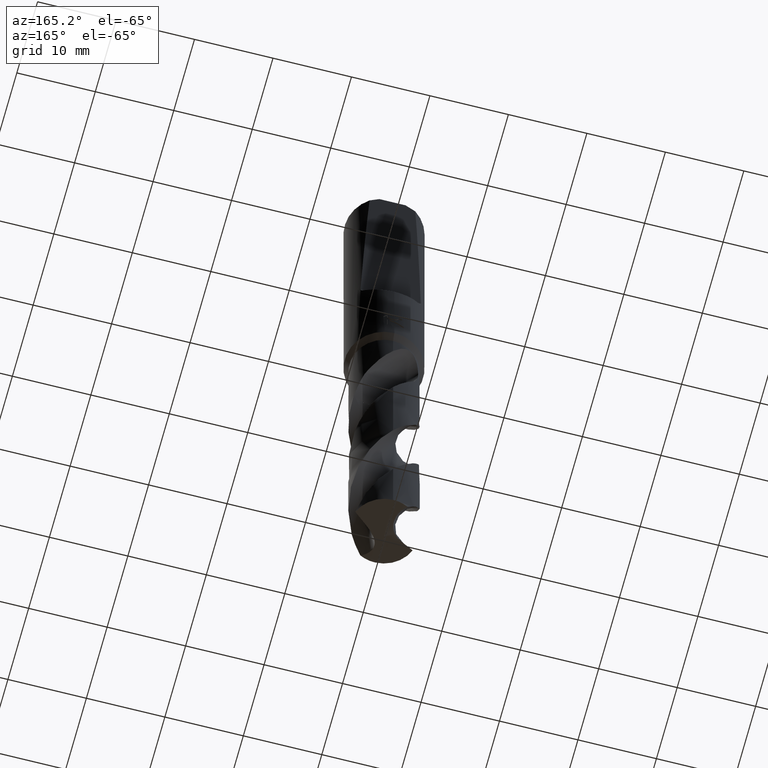
[diagram: clean part render]
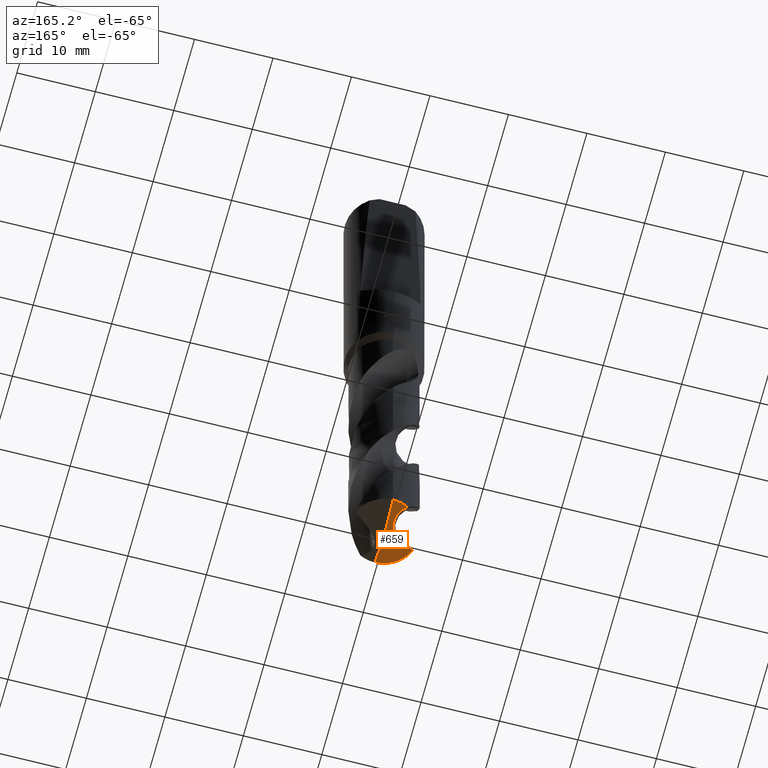
[diagram: same view with one face highlighted and labeled with its STEP entity id]
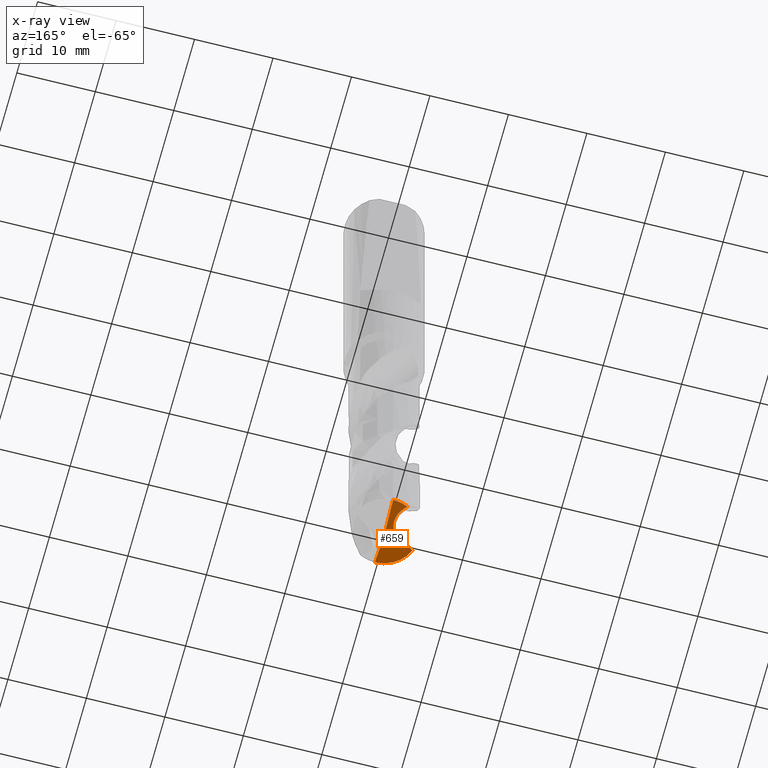
[diagram: x-ray of the same camera — body ghosted, the highlighted face saturated]
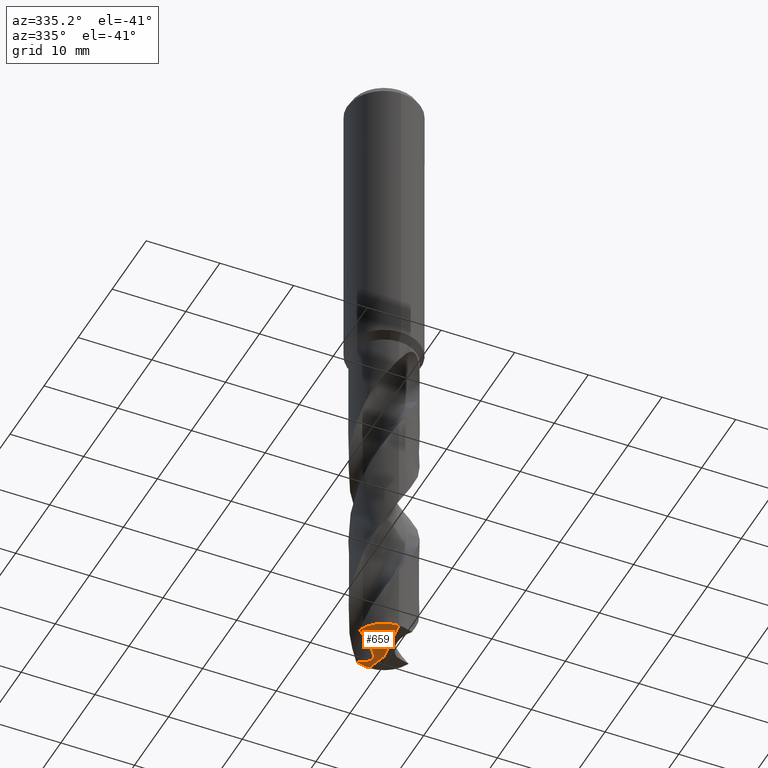
[diagram: same view with one face highlighted and labeled with its STEP entity id]
A machine part, auxiliary view. The second image highlights one B-rep face of the part: STEP entity #659.
The next image is the same camera in x-ray: the body ghosted, the highlighted face saturated — about 0% of this face is hidden behind the body in this view.
A second angle (auxiliary view) of the same face is appended — the face is thin or edge-on in the first view.
In plain terms, the highlighted conical surface has half-angle 70 deg.
Its self-contained STEP definition (entity closure, byte-faithful):
#421=EDGE_CURVE('',#719,#565,#995,.T.);
#451=EDGE_CURVE('',#683,#703,#1028,.T.);
#491=EDGE_CURVE('',#703,#719,#1070,.T.);
#493=EDGE_CURVE('',#725,#693,#1072,.T.);
#521=EDGE_CURVE('',#693,#683,#1101,.T.);
#565=VERTEX_POINT('',#1150);
#601=EDGE_CURVE('',#565,#725,#1189,.T.);
#659=ADVANCED_FACE('',(#1253),#1254,.T.);
#683=VERTEX_POINT('',#1282);
#693=VERTEX_POINT('',#1293);
#703=VERTEX_POINT('',#1303);
#719=VERTEX_POINT('',#1320);
#725=VERTEX_POINT('',#1326);
#995=B_SPLINE_CURVE_WITH_KNOTS('',3,(#4388,#4389,#4390,#4391),.UNSPECIFIED.,.F.,.F.,(4,4),(0.0,3.81427785119124),.UNSPECIFIED.);
#1028=LINE('',#4778,#4779);
#1070=CIRCLE('',#4896,4.4);
#1072=CIRCLE('',#4899,4.4);
#1101=LINE('',#4969,#4970);
#1150=CARTESIAN_POINT('',(-2.67709469848093,-0.712319486324731,-87.9917147423264));
#1189=B_SPLINE_CURVE_WITH_KNOTS('',3,(#5320,#5321,#5322,#5323,#5324,#5325,#5326,#5327,#5328,#5329,#5330,#5331,#5332,#5333,#5334,#5335,#5336,#5337,#5338,#5339),.UNSPECIFIED.,.F.,.F.,(4,2,2,2,2,2,2,2,2,4),(0.0,1.83125859256864,3.07777585283208,4.26415405684286,5.59452050750894,7.03864488996546,8.6705030000871,10.4947934989979,11.5945860376614,12.6939633731758),.UNSPECIFIED.);
#1253=FACE_OUTER_BOUND('',#6067,.T.);
#1254=CONICAL_SURFACE('',#6068,2.2,1.22173047639603);
#1282=CARTESIAN_POINT('',(0.0,0.0,-89.0));
#1293=CARTESIAN_POINT('',(-5.38827073934984E-016,4.4,-87.3985309692287));
#1303=CARTESIAN_POINT('',(5.38826795681846E-016,-4.4,-87.3985309692287));
#1320=CARTESIAN_POINT('',(-4.08589994672556,-1.63261190285631,-87.3985309692287));
#1326=CARTESIAN_POINT('',(-1.97377628759235,3.93245561532971,-87.3985309692287));
#4388=CARTESIAN_POINT('',(-5.4962920367412,-2.91732306179061,-86.7351807769627));
#4389=CARTESIAN_POINT('',(-4.67872809727112,-2.03567176389094,-87.1484653534148));
#4390=CARTESIAN_POINT('',(-3.72720692329672,-1.28982433441823,-87.5683086290318));
#4391=CARTESIAN_POINT('',(-2.67709469844478,-0.712319486416317,-87.9917147423306));
#4778=CARTESIAN_POINT('',(2.69413397840923E-016,-2.2,-88.1992654846144));
#4779=VECTOR('',#8707,1.0);
#4896=AXIS2_PLACEMENT_3D('',#8738,#8739,#8740);
#4899=AXIS2_PLACEMENT_3D('',#8741,#8742,#8743);
#4969=CARTESIAN_POINT('',(-2.69413397840923E-016,2.2,-88.1992654846144));
#4970=VECTOR('',#8778,1.0);
#5320=CARTESIAN_POINT('',(-2.67709469848093,-0.712319486324716,-87.9917147423264));
#5321=CARTESIAN_POINT('',(-2.17277060981055,-0.434973714612372,-88.1950581468194));
#5322=CARTESIAN_POINT('',(-1.75699296967722,-0.0778453673866717,-88.375458618042));
#5323=CARTESIAN_POINT('',(-1.25421176862185,0.490746340206717,-88.5192052367459));
#5324=CARTESIAN_POINT('',(-1.1043586415588,0.708693427648985,-88.5304307522449));
#5325=CARTESIAN_POINT('',(-0.884451145763963,1.14377962270871,-88.4803407941078));
#5326=CARTESIAN_POINT('',(-0.812029601271759,1.36335061122148,-88.4243849579457));
#5327=CARTESIAN_POINT('',(-0.738013298071177,1.84168820186188,-88.2798270145317));
#5328=CARTESIAN_POINT('',(-0.744389493662902,2.11160735966473,-88.1851414606827));
#5329=CARTESIAN_POINT('',(-0.879035352865547,2.68717951022026,-87.9710032164542));
#5330=CARTESIAN_POINT('',(-1.01173101077552,2.96858133352043,-87.8588999003269));
#5331=CARTESIAN_POINT('',(-1.398733685613,3.50241012472371,-87.6277557443121));
#5332=CARTESIAN_POINT('',(-1.66286584129612,3.74145144980197,-87.5113436585922));
#5333=CARTESIAN_POINT('',(-2.30332725199803,4.13495298992094,-87.2789434632606));
#5334=CARTESIAN_POINT('',(-2.68397089827299,4.27310336096628,-87.1663296634171));
#5335=CARTESIAN_POINT('',(-3.32144801698124,4.37800389720874,-87.0008411536981));
#5336=CARTESIAN_POINT('',(-3.56608740469832,4.39082998109477,-86.942391572483));
#5337=CARTESIAN_POINT('',(-4.05494522036527,4.36400931824945,-86.8329290857725));
#5338=CARTESIAN_POINT('',(-4.29835552107243,4.32442935822041,-86.7820960825511));
#5339=CARTESIAN_POINT('',(-4.53605638398883,4.25960003771178,-86.7351807769628));
#6067=EDGE_LOOP('',(#8944,#8945,#8946,#8947,#8948,#8949));
#6068=AXIS2_PLACEMENT_3D('',#8950,#8951,#8952);
#8707=DIRECTION('',(1.15075355405442E-016,-0.939692620785908,0.342020143325669));
#8738=CARTESIAN_POINT('',(0.0,0.0,-87.3985309692287));
#8739=DIRECTION('',(0.0,0.0,-1.0));
#8740=DIRECTION('',(0.0,1.0,0.0));
#8741=CARTESIAN_POINT('',(0.0,0.0,-87.3985309692287));
#8742=DIRECTION('',(0.0,0.0,-1.0));
#8743=DIRECTION('',(0.0,1.0,0.0));
#8778=DIRECTION('',(1.15075355405442E-016,-0.939692620785908,-0.342020143325669));
#8944=ORIENTED_EDGE('',*,*,#451,.T.);
#8945=ORIENTED_EDGE('',*,*,#491,.T.);
#8946=ORIENTED_EDGE('',*,*,#421,.T.);
#8947=ORIENTED_EDGE('',*,*,#601,.T.);
#8948=ORIENTED_EDGE('',*,*,#493,.T.);
#8949=ORIENTED_EDGE('',*,*,#521,.T.);
#8950=CARTESIAN_POINT('',(0.0,0.0,-88.1992654846144));
#8951=DIRECTION('',(-0.0,-0.0,1.0));
#8952=DIRECTION('',(0.0,1.0,0.0));